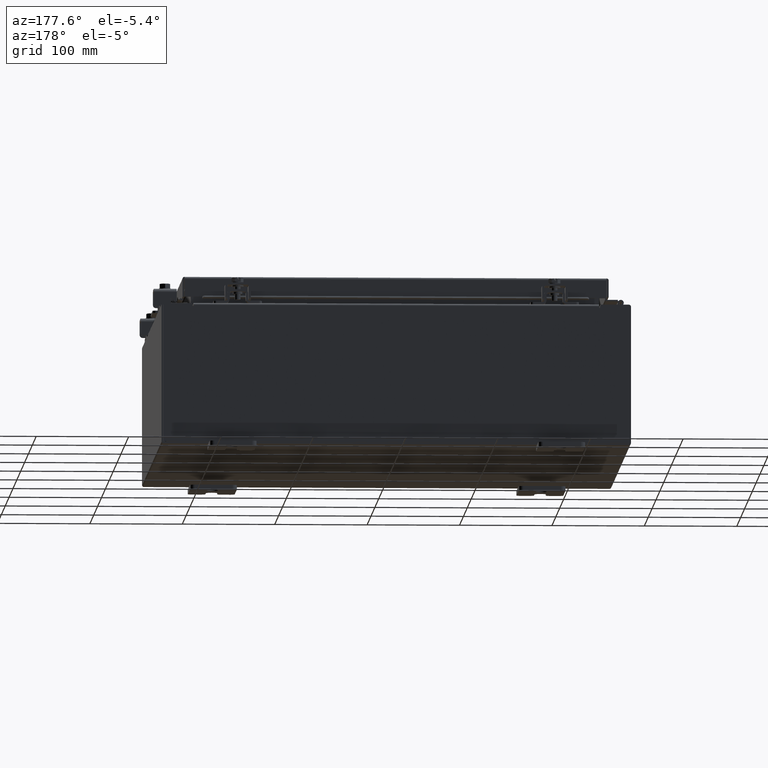
[diagram: clean part render]
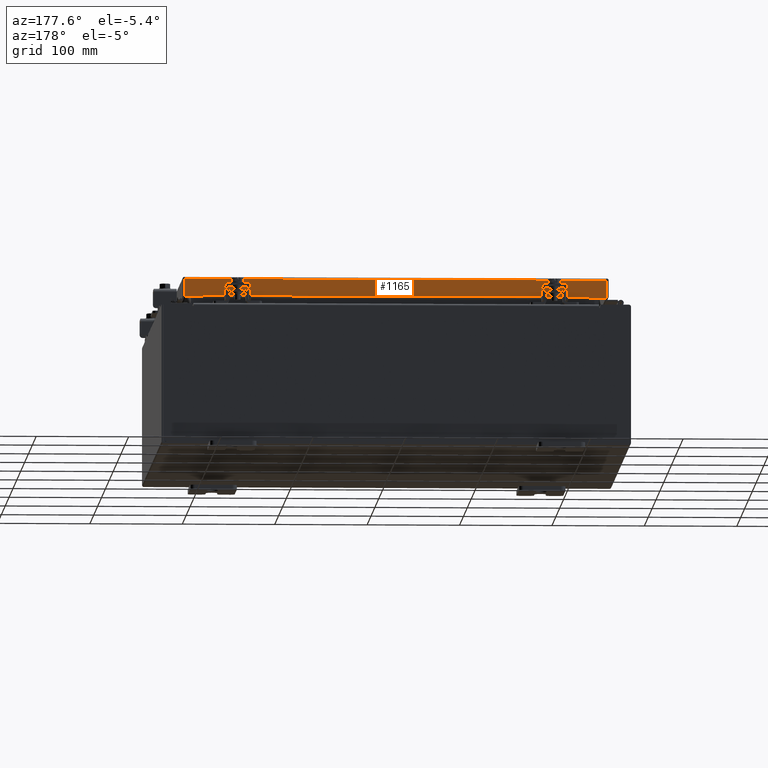
[diagram: same view with one face highlighted and labeled with its STEP entity id]
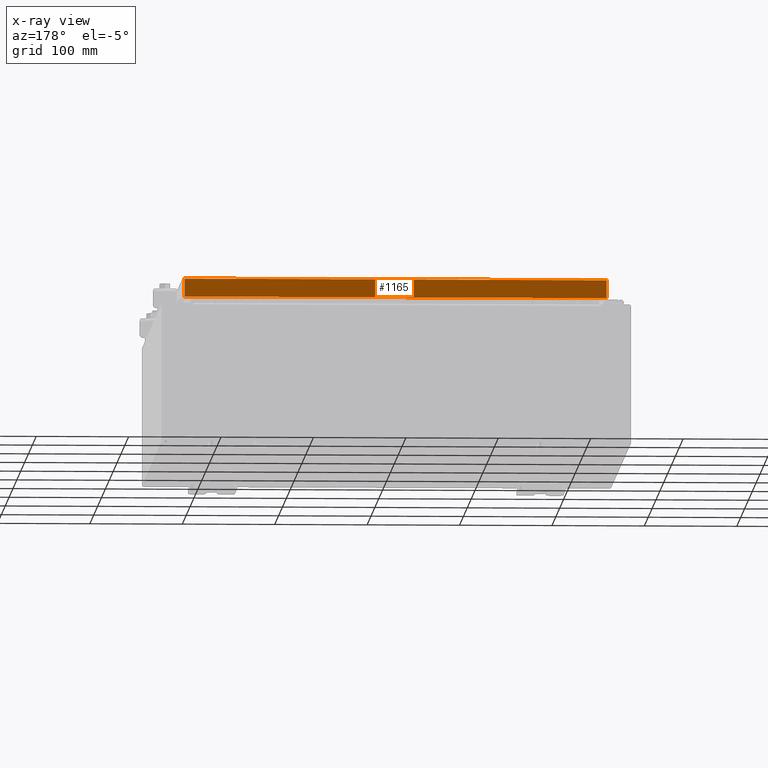
[diagram: x-ray of the same camera — body ghosted, the highlighted face saturated]
A machine part, auxiliary view. The second image highlights one B-rep face of the part: STEP entity #1165.
The next image is the same camera in x-ray: the body ghosted, the highlighted face saturated — about 0% of this face is hidden behind the body in this view.
In plain terms, the highlighted planar face has unit normal (0, -1, -0).
Its self-contained STEP definition (entity closure, byte-faithful):
#99 = ORIENTED_EDGE ( 'NONE', *, *, #6600, .F. ) ;
#718 = CARTESIAN_POINT ( 'NONE',  ( -9.077999999999999400, 9.094000000000001200, -0.8500000000000019800 ) ) ;
#799 = VERTEX_POINT ( 'NONE', #27489 ) ;
#960 = ORIENTED_EDGE ( 'NONE', *, *, #11367, .T. ) ;
#1165 = ADVANCED_FACE ( 'NONE', ( #1622 ), #14927, .F. ) ;
#1622 = FACE_OUTER_BOUND ( 'NONE', #23324, .T. ) ;
#1704 = VERTEX_POINT ( 'NONE', #8334 ) ;
#3041 = DIRECTION ( 'NONE',  ( 1.000000000000000000, -4.379057701015054300E-047, 1.278955053213606700E-016 ) ) ;
#3631 = CARTESIAN_POINT ( 'NONE',  ( -8.239157864376265300, 9.093999999999995900, -0.8500000000000029800 ) ) ;
#5857 = VECTOR ( 'NONE', #3041, 39.37007874015748100 ) ;
#5937 = CARTESIAN_POINT ( 'NONE',  ( 8.989157864376267100, 9.094000000000001200, -0.8499999999999996400 ) ) ;
#5976 = DIRECTION ( 'NONE',  ( 1.000000000000000000, -0.0000000000000000000, -0.0000000000000000000 ) ) ;
#6088 = CARTESIAN_POINT ( 'NONE',  ( -3.278588910595573600E-030, 9.093999999999999400, 2.589571694958335100E-014 ) ) ;
#6551 = LINE ( 'NONE', #718, #5857 ) ;
#6600 = EDGE_CURVE ( 'NONE', #799, #1704, #9344, .T. ) ;
#6803 = LINE ( 'NONE', #25892, #12130 ) ;
#8334 = CARTESIAN_POINT ( 'NONE',  ( -8.989157864376267100, 9.094000000000001200, -0.8500000000000019800 ) ) ;
#8578 = VECTOR ( 'NONE', #5976, 39.37007874015748100 ) ;
#9344 = LINE ( 'NONE', #25632, #14693 ) ;
#9957 = ORIENTED_EDGE ( 'NONE', *, *, #27043, .F. ) ;
#11310 = DIRECTION ( 'NONE',  ( 0.0000000000000000000, 2.818880942772351900E-015, -1.000000000000000000 ) ) ;
#11367 = EDGE_CURVE ( 'NONE', #16374, #15915, #6803, .T. ) ;
#11523 = EDGE_CURVE ( 'NONE', #27400, #14901, #21422, .T. ) ;
#12130 = VECTOR ( 'NONE', #28156, 39.37007874015748100 ) ;
#13750 = CARTESIAN_POINT ( 'NONE',  ( -9.077999999999999400, 9.094000000000001200, -0.8500000000000019800 ) ) ;
#13894 = AXIS2_PLACEMENT_3D ( 'NONE', #6088, #15782, #11310 ) ;
#14240 = DIRECTION ( 'NONE',  ( -0.0000000000000000000, 2.818880942772351900E-015, -1.000000000000000000 ) ) ;
#14693 = VECTOR ( 'NONE', #14240, 39.37007874015748100 ) ;
#14901 = VERTEX_POINT ( 'NONE', #23551 ) ;
#14927 = PLANE ( 'NONE',  #13894 ) ;
#15719 = EDGE_CURVE ( 'NONE', #1704, #27400, #6551, .T. ) ;
#15782 = DIRECTION ( 'NONE',  ( 3.605222026166233900E-031, -1.000000000000000000, -2.818880942772351900E-015 ) ) ;
#15915 = VERTEX_POINT ( 'NONE', #5937 ) ;
#16052 = DIRECTION ( 'NONE',  ( 1.000000000000000000, -4.379057701015054300E-047, 1.278955053213606700E-016 ) ) ;
#16374 = VERTEX_POINT ( 'NONE', #16421 ) ;
#16421 = CARTESIAN_POINT ( 'NONE',  ( 8.989157864376267100, 9.093999999999999400, -0.08770000000000007000 ) ) ;
#17572 = LINE ( 'NONE', #22232, #28977 ) ;
#20852 = ORIENTED_EDGE ( 'NONE', *, *, #15719, .F. ) ;
#21422 = LINE ( 'NONE', #24083, #8578 ) ;
#21588 = ORIENTED_EDGE ( 'NONE', *, *, #27522, .F. ) ;
#22232 = CARTESIAN_POINT ( 'NONE',  ( -9.077999999999999400, 9.093999999999999400, -0.08770000000000007000 ) ) ;
#23182 = ORIENTED_EDGE ( 'NONE', *, *, #11523, .F. ) ;
#23324 = EDGE_LOOP ( 'NONE', ( #21588, #960, #9957, #23182, #20852, #99 ) ) ;
#23551 = CARTESIAN_POINT ( 'NONE',  ( 8.239157864376267100, 9.093999999999995900, -0.8500000000000029800 ) ) ;
#24083 = CARTESIAN_POINT ( 'NONE',  ( -8.239157864376267100, 9.093999999999995900, -0.8500000000000029800 ) ) ;
#25091 = LINE ( 'NONE', #13750, #29005 ) ;
#25632 = CARTESIAN_POINT ( 'NONE',  ( -8.989157864376267100, 9.093999999999999400, -0.07469999999999978000 ) ) ;
#25892 = CARTESIAN_POINT ( 'NONE',  ( 8.989157864376267100, 9.093999999999999400, 2.589571694958335100E-014 ) ) ;
#26820 = DIRECTION ( 'NONE',  ( -1.000000000000000000, -3.605222026166234800E-031, -9.826997386333231700E-046 ) ) ;
#27043 = EDGE_CURVE ( 'NONE', #14901, #15915, #25091, .T. ) ;
#27400 = VERTEX_POINT ( 'NONE', #3631 ) ;
#27489 = CARTESIAN_POINT ( 'NONE',  ( -8.989157864376267100, 9.093999999999999400, -0.08770000000000007000 ) ) ;
#27522 = EDGE_CURVE ( 'NONE', #16374, #799, #17572, .T. ) ;
#28156 = DIRECTION ( 'NONE',  ( 0.0000000000000000000, 2.818880942772351900E-015, -1.000000000000000000 ) ) ;
#28977 = VECTOR ( 'NONE', #26820, 39.37007874015748100 ) ;
#29005 = VECTOR ( 'NONE', #16052, 39.37007874015748100 ) ;